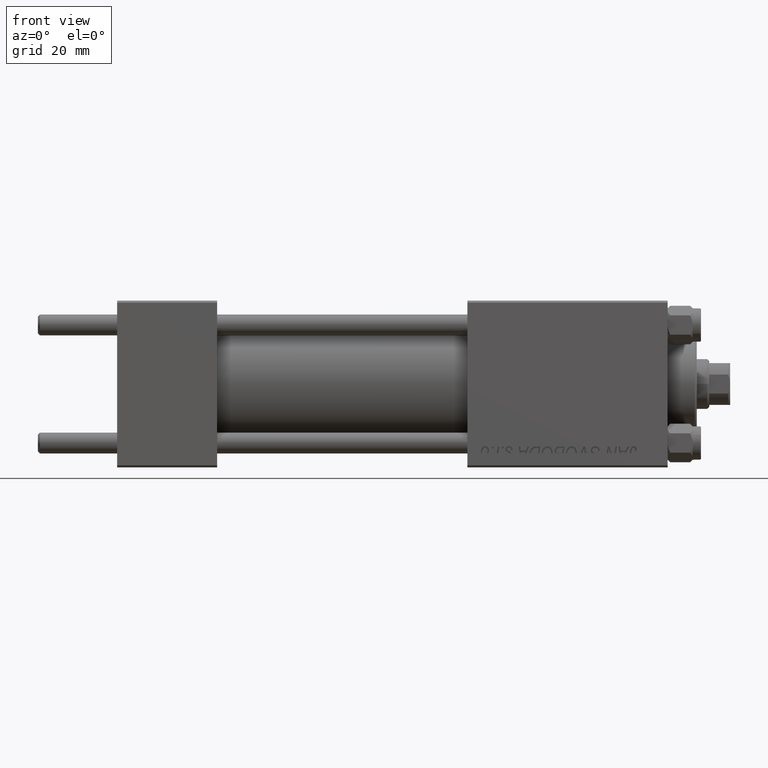
[diagram: clean part render]
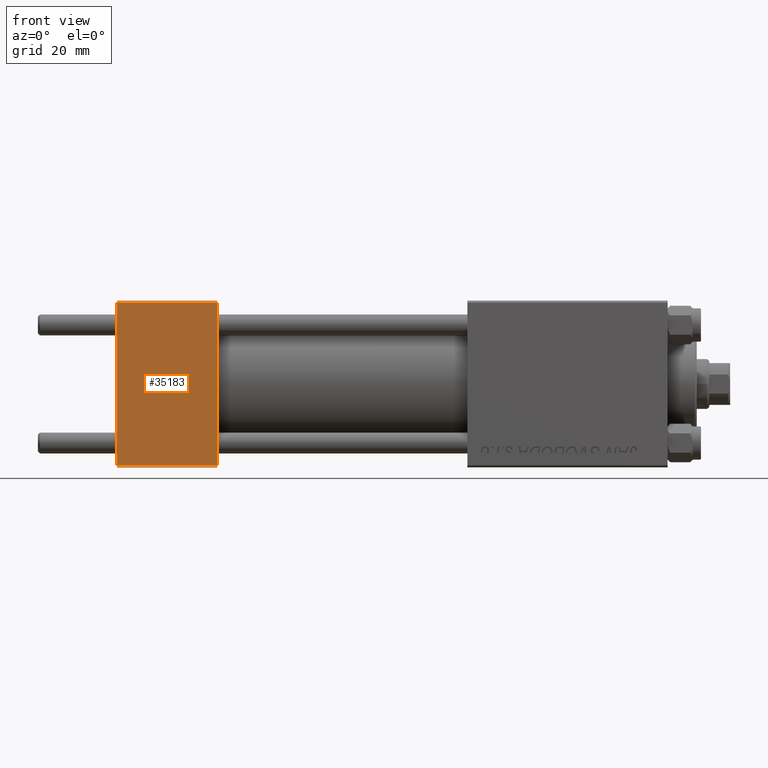
[diagram: same view with one face highlighted and labeled with its STEP entity id]
A machine part, front view. The second image highlights one B-rep face of the part: STEP entity #35183.
In plain terms, the highlighted planar face has unit normal (0, 1, 0).
Its self-contained STEP definition (entity closure, byte-faithful):
#899 = VERTEX_POINT ( 'NONE', #12926 ) ;
#1948 = ORIENTED_EDGE ( 'NONE', *, *, #19497, .F. ) ;
#4289 = DIRECTION ( 'NONE',  ( 0.000000000000000000, -8.673617379884036705E-17, 1.000000000000000000 ) ) ;
#4317 = DIRECTION ( 'NONE',  ( -1.000000000000000000, 0.000000000000000000, 0.000000000000000000 ) ) ;
#4628 = DIRECTION ( 'NONE',  ( 0.000000000000000000, 8.673617379884036705E-17, -1.000000000000000000 ) ) ;
#5084 = CARTESIAN_POINT ( 'NONE',  ( 24.00000000000000000, -20.00000000000000000, -19.49999999999999645 ) ) ;
#6364 = ORIENTED_EDGE ( 'NONE', *, *, #28070, .T. ) ;
#8056 = CARTESIAN_POINT ( 'NONE',  ( 24.00000000000000000, -20.00000000000000355, 19.99999999999998934 ) ) ;
#8334 = LINE ( 'NONE', #46109, #38158 ) ;
#8940 = AXIS2_PLACEMENT_3D ( 'NONE', #8056, #38781, #4289 ) ;
#9944 = VERTEX_POINT ( 'NONE', #40693 ) ;
#11898 = DIRECTION ( 'NONE',  ( 1.000000000000000000, 0.000000000000000000, 0.000000000000000000 ) ) ;
#12926 = CARTESIAN_POINT ( 'NONE',  ( 24.00000000000000000, -20.00000000000000355, 19.49999999999998224 ) ) ;
#13582 = EDGE_CURVE ( 'NONE', #899, #45167, #8334, .T. ) ;
#14118 = LINE ( 'NONE', #41560, #23739 ) ;
#18314 = VERTEX_POINT ( 'NONE', #31012 ) ;
#19497 = EDGE_CURVE ( 'NONE', #899, #9944, #14118, .T. ) ;
#19731 = LINE ( 'NONE', #34355, #33853 ) ;
#23739 = VECTOR ( 'NONE', #37033, 1000.000000000000000 ) ;
#25448 = ORIENTED_EDGE ( 'NONE', *, *, #13582, .T. ) ;
#28070 = EDGE_CURVE ( 'NONE', #18314, #9944, #43102, .T. ) ;
#31012 = CARTESIAN_POINT ( 'NONE',  ( 0.000000000000000000, -20.00000000000000000, -19.49999999999999645 ) ) ;
#33853 = VECTOR ( 'NONE', #4628, 1000.000000000000000 ) ;
#34355 = CARTESIAN_POINT ( 'NONE',  ( 0.000000000000000000, -20.00000000000000355, 19.99999999999998934 ) ) ;
#35183 = ADVANCED_FACE ( 'NONE', ( #46328 ), #42553, .F. ) ;
#36883 = VECTOR ( 'NONE', #11898, 1000.000000000000000 ) ;
#37033 = DIRECTION ( 'NONE',  ( 0.000000000000000000, 8.673617379884036705E-17, -1.000000000000000000 ) ) ;
#38158 = VECTOR ( 'NONE', #4317, 1000.000000000000000 ) ;
#38538 = EDGE_CURVE ( 'NONE', #45167, #18314, #19731, .T. ) ;
#38781 = DIRECTION ( 'NONE',  ( -0.000000000000000000, 1.000000000000000000, 8.673617379884036705E-17 ) ) ;
#38985 = EDGE_LOOP ( 'NONE', ( #46539, #6364, #1948, #25448 ) ) ;
#40693 = CARTESIAN_POINT ( 'NONE',  ( 24.00000000000000000, -20.00000000000000000, -19.49999999999999645 ) ) ;
#41560 = CARTESIAN_POINT ( 'NONE',  ( 24.00000000000000000, -20.00000000000000355, 19.99999999999998934 ) ) ;
#42553 = PLANE ( 'NONE',  #8940 ) ;
#43102 = LINE ( 'NONE', #5084, #36883 ) ;
#45167 = VERTEX_POINT ( 'NONE', #47864 ) ;
#46109 = CARTESIAN_POINT ( 'NONE',  ( 24.00000000000000000, -20.00000000000000355, 19.49999999999998224 ) ) ;
#46328 = FACE_OUTER_BOUND ( 'NONE', #38985, .T. ) ;
#46539 = ORIENTED_EDGE ( 'NONE', *, *, #38538, .T. ) ;
#47864 = CARTESIAN_POINT ( 'NONE',  ( 0.000000000000000000, -20.00000000000000355, 19.49999999999998224 ) ) ;